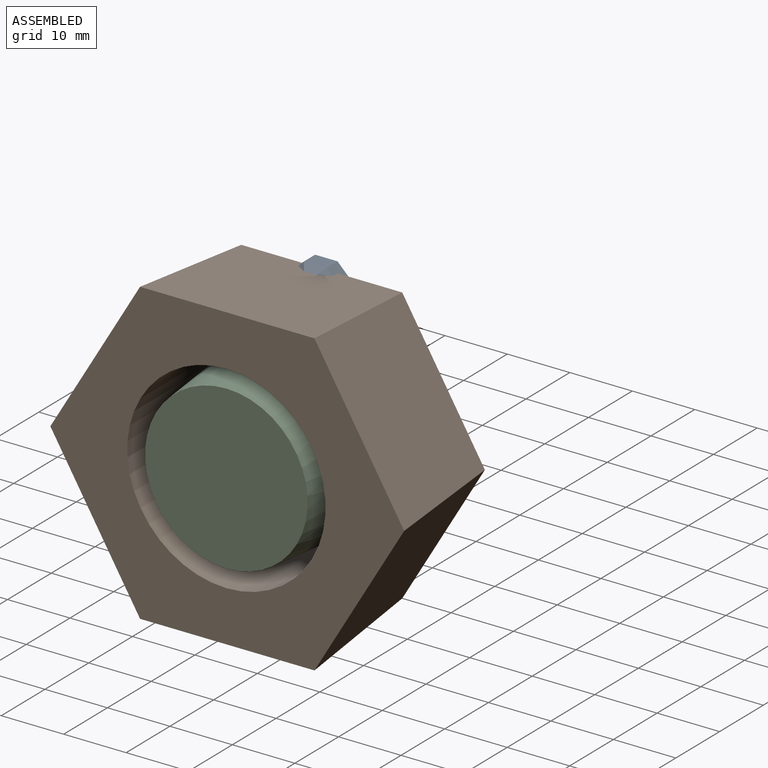
[diagram: assembled view]
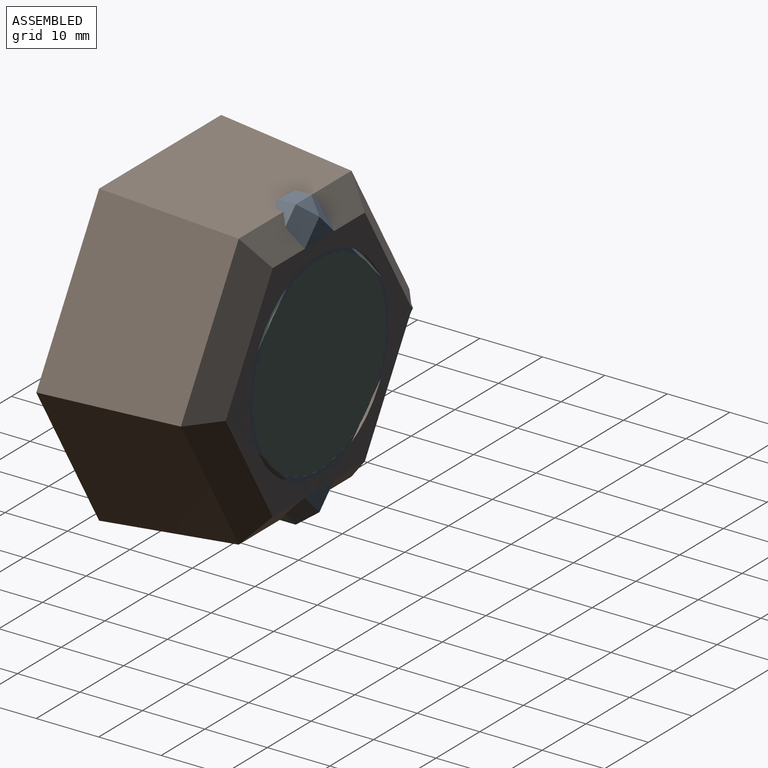
[diagram: assembled view, second angle]
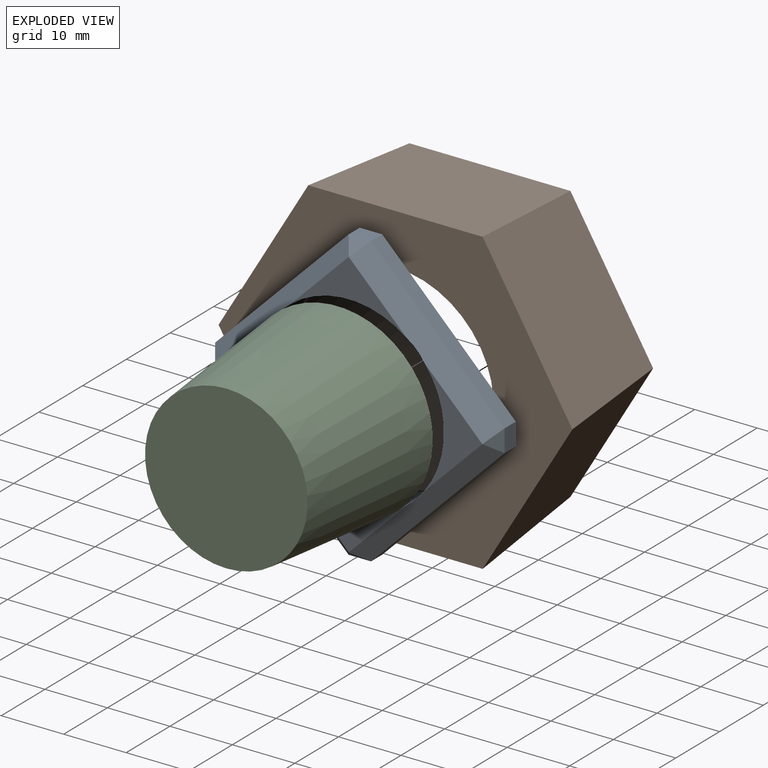
[diagram: exploded view]
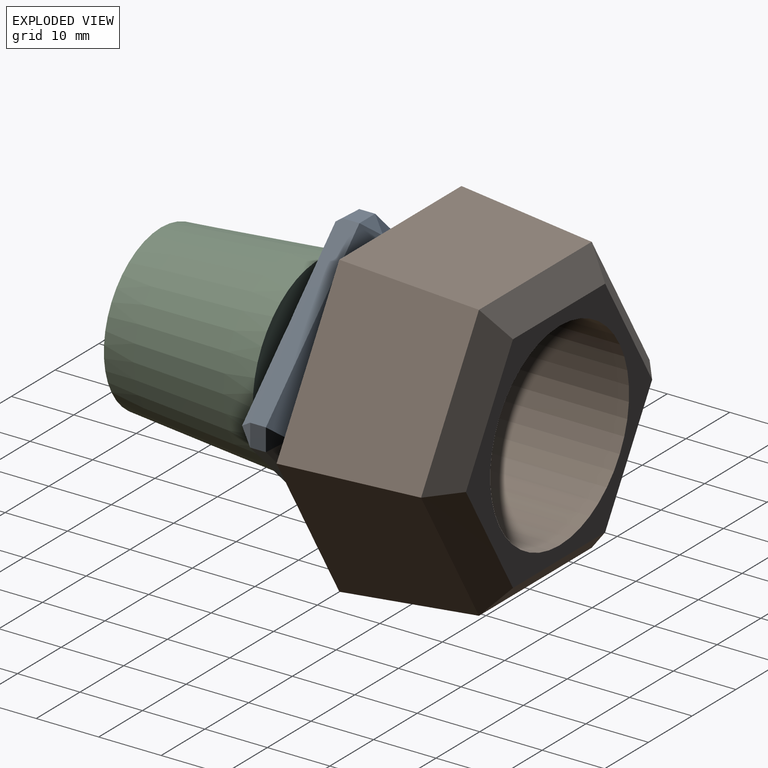
[diagram: exploded view, second angle]
ASSEMBLY  parts=3 mates=2
PART A: 33 faces, bbox 46.4x7.6x46.4 mm
  f0: plane 18.66x9.33mm, normal (0,1,0), area 46.5mm2, adj f10,f18,f19
  f1: plane 18.66x9.33mm, normal (0,1,0), area 46.5mm2, adj f10,f13,f19
  f2: plane 18.66x9.33mm, normal (0,1,0), area 46.5mm2, adj f10,f13,f17
  f3: plane 18.66x9.33mm, normal (0,-1,0), area 46.5mm2, adj f10,f29,f32
  f4: plane 18.66x9.33mm, normal (0,-1,0), area 46.5mm2, adj f10,f26,f32
  f5: plane 18.66x9.33mm, normal (0,-1,0), area 46.5mm2, adj f10,f21,f26
  f6: plane 21.38x21.38mm, normal (0.71,0,0.71), area 76.8mm2, adj f13,f16,f20,f21
  f7: plane 21.38x21.38mm, normal (-0.71,0,0.71), area 76.8mm2, adj f19,f20,f28,f29
  f8: plane 21.38x21.38mm, normal (-0.71,0,-0.71), area 76.8mm2, adj f18,f27,f28,f32
  f9: plane 21.38x21.38mm, normal (0.71,0,-0.71), area 76.8mm2, adj f16,f17,f26,f27
  f10: cylinder r=15.24mm len=30.48mm, axis (0,1,0), area 727.1mm2, adj f0,f1,f2,f3,f4,f5,f11,f12
  f11: plane 18.66x9.33mm, normal (0,-1,0), area 46.5mm2, adj f10,f21,f29
  f12: plane 18.66x9.33mm, normal (0,1,0), area 46.5mm2, adj f10,f17,f18
  f13: plane 23.18x23.18mm, normal (0.5,0.71,0.5), area 108.2mm2, adj f1,f2,f6,f10,f14,f15
  f14: plane 3.59x2.54mm, normal (0.82,0.58,0), area 5.6mm2, adj f13,f16,f17
  f15: plane 3.59x2.54mm, normal (0,0.58,0.82), area 5.6mm2, adj f13,f19,f20
  f16: plane 3.59x2.54mm, normal (1,0,0), area 9.1mm2, adj f6,f9,f14,f22
  f17: plane 23.18x23.18mm, normal (0.5,0.71,-0.5), area 108.2mm2, adj f2,f9,f10,f12,f14,f23
  f18: plane 23.18x23.18mm, normal (-0.5,0.71,-0.5), area 108.2mm2, adj f0,f8,f10,f12,f23,f24
  f19: plane 23.18x23.18mm, normal (-0.5,0.71,0.5), area 108.2mm2, adj f0,f1,f7,f10,f15,f24
  f20: plane 3.59x2.54mm, normal (0,0,1), area 9.1mm2, adj f6,f7,f15,f25
  f21: plane 23.18x23.18mm, normal (0.5,-0.71,0.5), area 108.2mm2, adj f5,f6,f10,f11,f22,f25
  f22: plane 3.59x2.54mm, normal (0.82,-0.58,0), area 5.6mm2, adj f16,f21,f26
  f23: plane 3.59x2.54mm, normal (0,0.58,-0.82), area 5.6mm2, adj f17,f18,f27
  f24: plane 3.59x2.54mm, normal (-0.82,0.58,0), area 5.6mm2, adj f18,f19,f28
  f25: plane 3.59x2.54mm, normal (0,-0.58,0.82), area 5.6mm2, adj f20,f21,f29
  f26: plane 23.18x23.18mm, normal (0.5,-0.71,-0.5), area 108.2mm2, adj f4,f5,f9,f10,f22,f30
  f27: plane 3.59x2.54mm, normal (0,0,-1), area 9.1mm2, adj f8,f9,f23,f30
  f28: plane 3.59x2.54mm, normal (-1,0,0), area 9.1mm2, adj f7,f8,f24,f31
  f29: plane 23.18x23.18mm, normal (-0.5,-0.71,0.5), area 108.2mm2, adj f3,f7,f10,f11,f25,f31
  f30: plane 3.59x2.54mm, normal (0,-0.58,-0.82), area 5.6mm2, adj f26,f27,f32
  f31: plane 3.59x2.54mm, normal (-0.82,-0.58,0), area 5.6mm2, adj f28,f29,f32
  f32: plane 23.18x23.18mm, normal (-0.5,-0.71,-0.5), area 108.2mm2, adj f3,f4,f8,f10,f30,f31
PART B: 15 faces, bbox 56.6x25.4x48 mm
  f0: plane 24.02x21.6mm, normal (-0.86,0.09,0.51), area 583.1mm2, adj f1,f5,f6,f12
  f1: plane 24.02x21.6mm, normal (-0.86,0.09,-0.51), area 583.1mm2, adj f0,f2,f6,f10
  f2: plane 27.92x21.6mm, normal (0,0.09,-1), area 582.3mm2, adj f1,f3,f6,f9
  f3: plane 24.02x21.6mm, normal (0.86,0.09,-0.51), area 583.1mm2, adj f2,f4,f6,f11
  f4: plane 24.02x21.6mm, normal (0.86,0.09,0.51), area 583.1mm2, adj f3,f5,f6,f13
  f5: plane 27.92x21.6mm, normal (0,0.09,1), area 582.3mm2, adj f0,f4,f6,f14
  f6: plane 56.64x48.05mm, normal (0,-1,0), area 1239.8mm2, adj f0,f1,f2,f3,f4,f5,f8
  f7: plane 42.59x35.98mm, normal (0,1,0), area 353.7mm2, adj f8,f9,f10,f11,f12,f13,f14
  f8: cylinder r=15.88mm len=31.75mm, axis (0,1,0), area 2533.5mm2, adj f6,f7
  f9: plane 25.78x4.14mm, normal (0,0.74,-0.68), area 131.6mm2, adj f2,f7,f10,f11
  f10: plane 22.13x15.58mm, normal (-0.58,0.74,-0.35), area 131.3mm2, adj f1,f7,f9,f12
  f11: plane 22.13x15.58mm, normal (0.58,0.74,-0.35), area 131.3mm2, adj f3,f7,f9,f13
  f12: plane 22.13x15.58mm, normal (-0.58,0.74,0.35), area 131.3mm2, adj f0,f7,f10,f14
  f13: plane 22.13x15.58mm, normal (0.58,0.74,0.35), area 131.3mm2, adj f4,f7,f11,f14
  f14: plane 25.78x4.14mm, normal (0,0.74,0.68), area 131.6mm2, adj f5,f7,f12,f13
PART C: 3 faces, bbox 30.5x25.4x30.5 mm
  f0: cone r=15.24mm half-angle=5deg, axis (0,1,0), area 2263.5mm2, adj f1,f2
  f1: plane 26.04x26.04mm, normal (0,-1,0), area 532.4mm2, adj f0
  f2: plane 30.48x30.48mm, normal (0,1,0), area 729.7mm2, adj f0
PLACE A rot(axis=(0,-1,0),90deg) t=(2.94,8.39,21.31)mm
PLACE B t=(-9.61,8.39,-0.47)mm
PLACE C t=(2.94,8.39,21.31)mm
MATE fastened C.f0 <-> A.f10  axis (0,1,0) through (2.94,8.39,21.31)mm
MATE fastened C.f0 <-> B.f8  axis (0,-1,0) through (2.94,-17.01,21.31)mm
